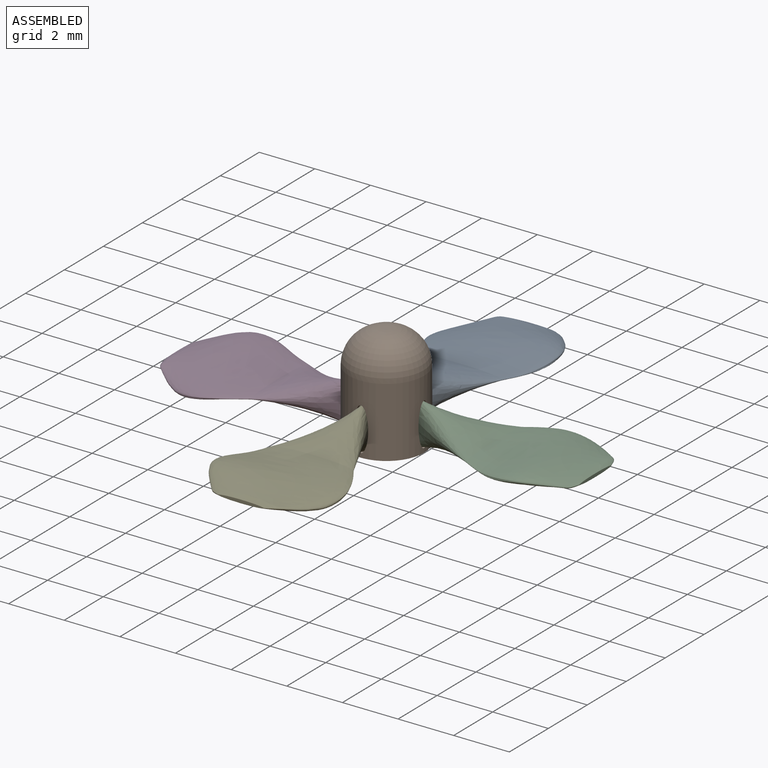
[diagram: assembled view]
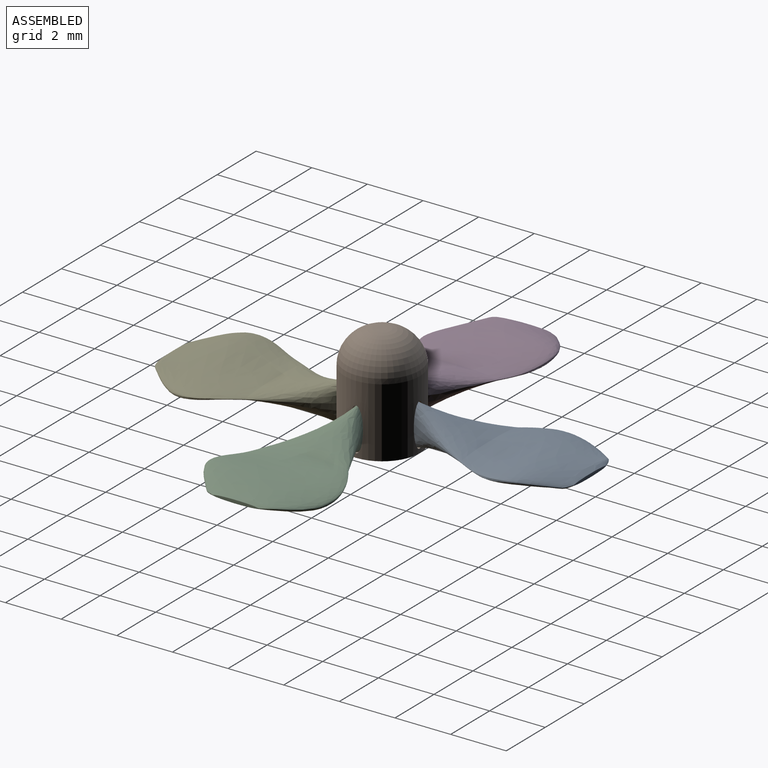
[diagram: assembled view, second angle]
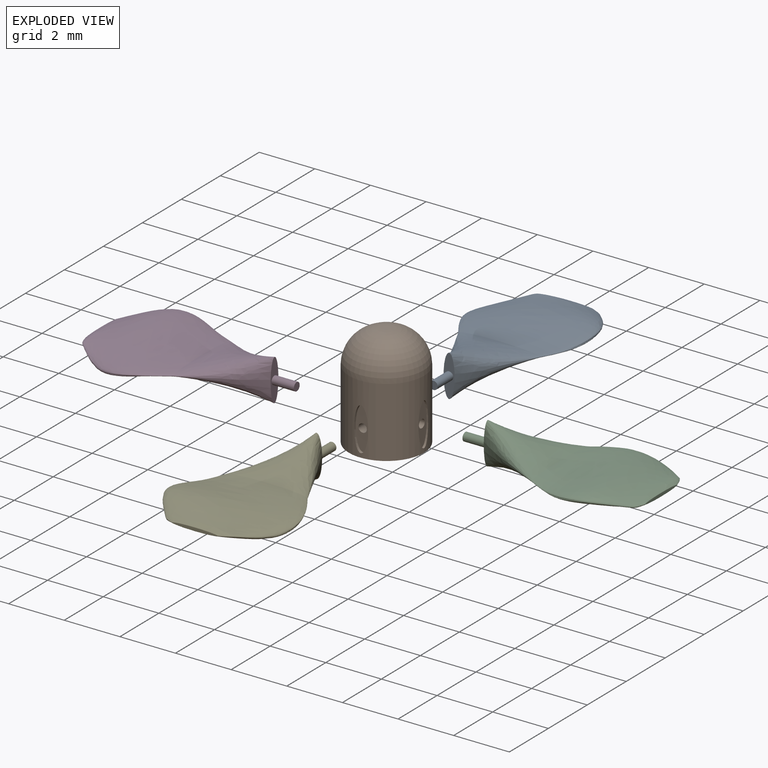
[diagram: exploded view]
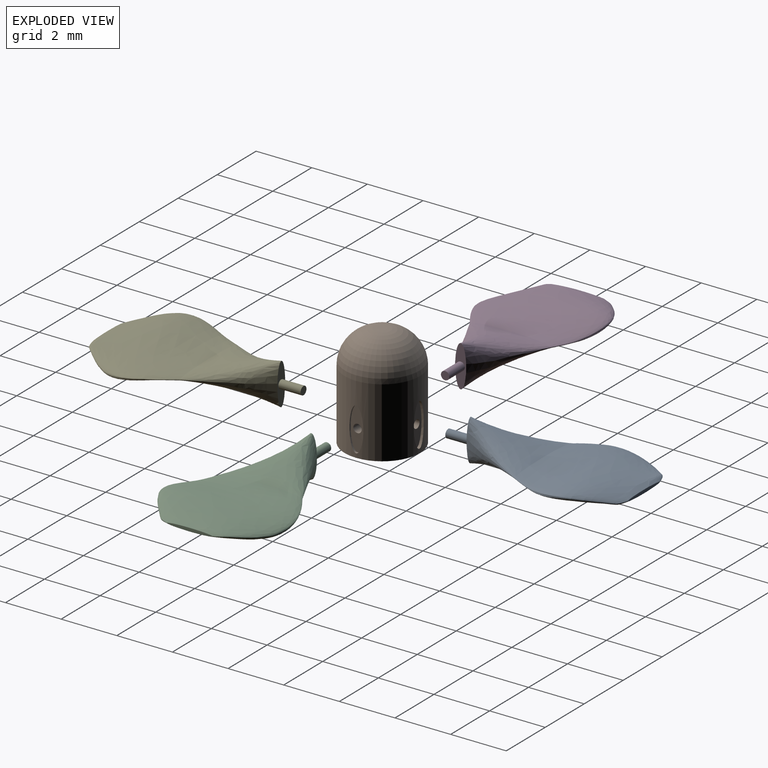
[diagram: exploded view, second angle]
ASSEMBLY  parts=5 mates=4
PART A: 11 faces, bbox 1.5x4.3x7.1 mm
  f0: plane 1.5x0.4mm, normal (0,0,-1), area 0.4mm2, adj f1,f9
  f1: bspline ~2.95x2.6mm, area 11.4mm2, adj f0,f2
  f2: bspline ~4.28x3.4mm, area 26.1mm2, adj f1,f4
  f3: plane 1.64x0.11mm, normal (0,0,1), area 0.1mm2, adj f6,f7
  f4: bspline ~2.5x0.29mm, area 1.1mm2, adj f2,f5,f6,f7,f8
  f5: bspline ~0.01x0.01mm, area 0mm2, adj f4,f6,f7
  f6: bspline ~1.66x0.07mm, area 0mm2, adj f3,f4,f5,f8
  f7: bspline ~1.67x0.24mm, area 0mm2, adj f3,f4,f5,f8
  f8: bspline ~0.01x0.01mm, area 0mm2, adj f4,f6,f7
  f9: cylinder r=0.15mm len=0.8mm, axis (0,0,1), area 0.8mm2, adj f0,f10
  f10: plane 0.3x0.3mm, normal (0,0,-1), area 0.1mm2, adj f9
PART B: 20 faces, bbox 2.7x2.7x3.7 mm
  f0: cylinder r=1.35mm len=2.7mm, axis (0,0,-1), area 18.8mm2, adj f2,f3,f4,f6,f8,f10
  f1: plane 0.3x0.3mm, normal (0,0,1), area 0.1mm2, adj f3
  f2: plane 2.7x2.7mm, normal (0,0,-1), area 5.7mm2, adj f0
  f3: torus R=0.15mm, axis (0,0,1), area 10.8mm2, adj f0,f1
  f4: extruded ~1.55x0.5mm, area 0.3mm2, adj f0,f5
  f5: plane 1.55x0.5mm, normal (0,-1,0), area 0.5mm2, adj f4,f18
  f6: extruded ~1.55x0.5mm, area 0.3mm2, adj f0,f7
  f7: plane 1.55x0.5mm, normal (0,1,0), area 0.5mm2, adj f6,f14
  f8: extruded ~1.55x0.5mm, area 0.2mm2, adj f0,f9
  f9: plane 1.55x0.5mm, normal (1,0,0), area 0.5mm2, adj f8,f12
  f10: extruded ~1.55x0.5mm, area 0.4mm2, adj f0,f11
  f11: plane 1.55x0.5mm, normal (-1,0,0), area 0.5mm2, adj f10,f16
  f12: cylinder r=0.15mm len=0.8mm, axis (1,0,0), area 0.8mm2, adj f9,f13
  f13: plane 0.3x0.3mm, normal (1,0,0), area 0.1mm2, adj f12
  f14: cylinder r=0.15mm len=0.8mm, axis (0,1,0), area 0.8mm2, adj f7,f15
  f15: plane 0.3x0.3mm, normal (0,1,0), area 0.1mm2, adj f14
  f16: cylinder r=0.15mm len=0.8mm, axis (-1,0,0), area 0.8mm2, adj f11,f17
  f17: plane 0.3x0.3mm, normal (-1,0,0), area 0.1mm2, adj f16
  f18: cylinder r=0.15mm len=0.8mm, axis (0,-1,0), area 0.8mm2, adj f5,f19
  f19: plane 0.3x0.3mm, normal (0,-1,0), area 0.1mm2, adj f18
PART C: same geometry as A
PART D: same geometry as A
PART E: same geometry as A
PLACE A rot(axis=(-0.58,-0.58,-0.58),120deg) t=(-234.8,67.32,54.19)mm
PLACE B t=(4.52,-194.79,81.86)mm
PLACE C rot(axis=(0.71,0,0.71),180deg) t=(27.31,220.92,54.19)mm
PLACE D rot(axis=(0,-1,0),90deg) t=(-81.19,-194.79,54.19)mm
PLACE E rot(axis=(0.58,-0.58,0.58),120deg) t=(180.91,-41.18,54.19)mm
MATE fastened A.f9 <-> B.f14  axis (0,-1,0) through (-26.94,14.32,36.02)mm
MATE fastened E.f9 <-> B.f14  axis (0,1,0) through (-26.94,11.82,36.02)mm
MATE fastened C.f9 <-> B.f12  axis (-1,0,0) through (-25.69,13.07,36.02)mm
MATE fastened D.f9 <-> B.f12  axis (1,0,0) through (-28.19,13.07,36.02)mm
